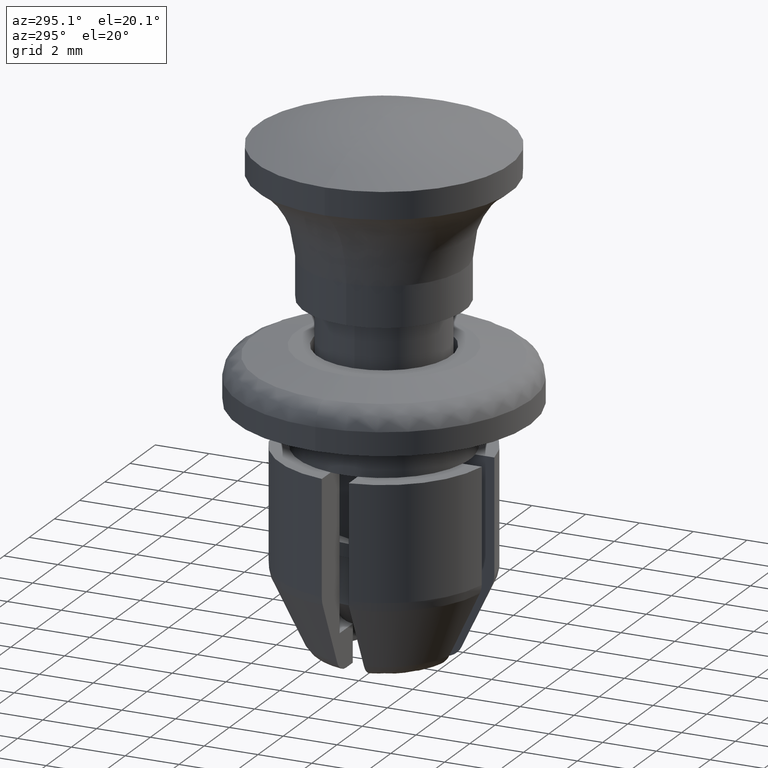
[diagram: clean part render]
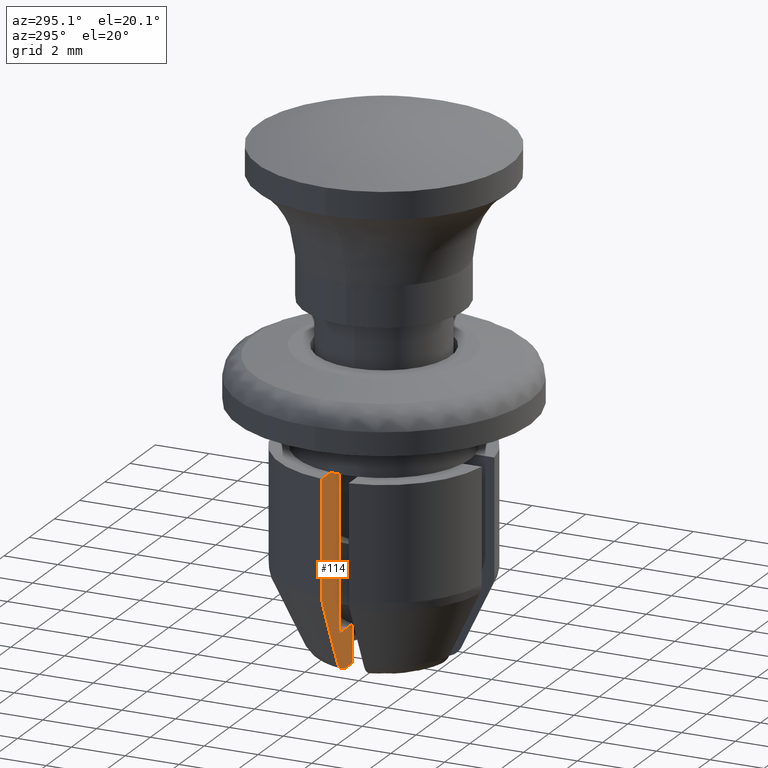
[diagram: same view with one face highlighted and labeled with its STEP entity id]
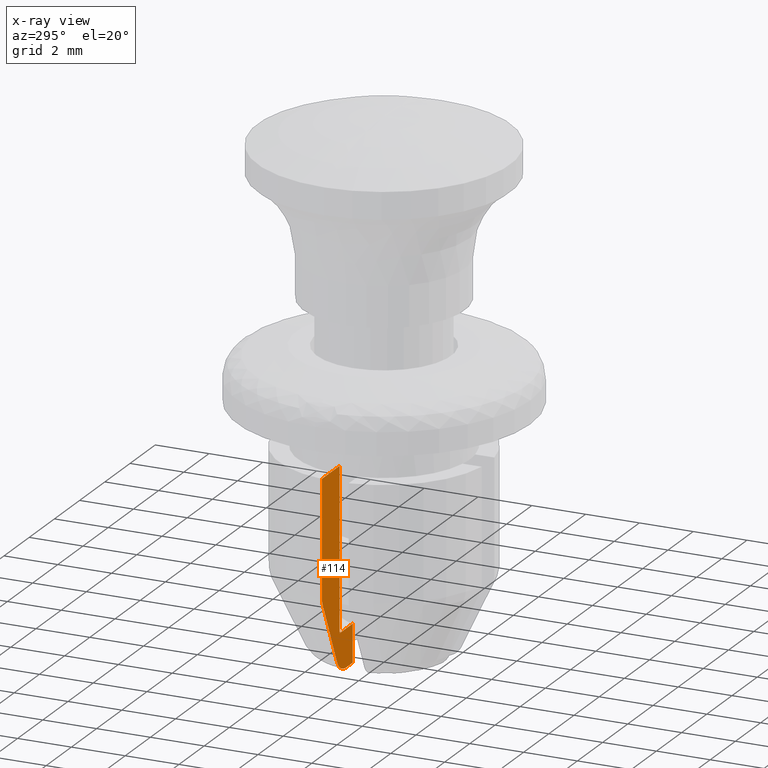
[diagram: x-ray of the same camera — body ghosted, the highlighted face saturated]
A machine part, auxiliary view. The second image highlights one B-rep face of the part: STEP entity #114.
The next image is the same camera in x-ray: the body ghosted, the highlighted face saturated — about 0% of this face is hidden behind the body in this view.
In plain terms, the highlighted planar face has unit normal (0, -1, 0).
Its self-contained STEP definition (entity closure, byte-faithful):
#114=ADVANCED_FACE('',(#213),#212,.T.);
#212=PLANE('',#1021);
#213=FACE_OUTER_BOUND('',#1022,.T.);
#1018=CARTESIAN_POINT('',(-4.11317615704E+00,5.00000000000E-01,-2.85996999998E+00));
#1019=DIRECTION('',(0.00000000000E+00,-1.00000000000E+00,0.00000000000E+00));
#1020=DIRECTION('',(0.00000000000E+00,0.00000000000E+00,-1.00000000000E+00));
#1021=AXIS2_PLACEMENT_3D('',#1018,#1019,#1020);
#1022=EDGE_LOOP('',(#1620,#1621,#1622,#1623,#1624,#1625,#1626,#1627,#1628,#1629));
#1620=ORIENTED_EDGE('',*,*,#2011,.F.);
#1621=ORIENTED_EDGE('',*,*,#2012,.F.);
#1622=ORIENTED_EDGE('',*,*,#2013,.F.);
#1623=ORIENTED_EDGE('',*,*,#2014,.F.);
#1624=ORIENTED_EDGE('',*,*,#2015,.F.);
#1625=ORIENTED_EDGE('',*,*,#2016,.F.);
#1626=ORIENTED_EDGE('',*,*,#2017,.F.);
#1627=ORIENTED_EDGE('',*,*,#2018,.T.);
#1628=ORIENTED_EDGE('',*,*,#2019,.T.);
#1629=ORIENTED_EDGE('',*,*,#2020,.T.);
#2011=EDGE_CURVE('',#2284,#2285,#2286,.T.);
#2012=EDGE_CURVE('',#2292,#2284,#2293,.T.);
#2013=EDGE_CURVE('',#2299,#2292,#2300,.T.);
#2014=EDGE_CURVE('',#2306,#2299,#2307,.T.);
#2015=EDGE_CURVE('',#2313,#2306,#2314,.T.);
#2016=EDGE_CURVE('',#2320,#2313,#2321,.T.);
#2017=EDGE_CURVE('',#2327,#2320,#2328,.T.);
#2018=EDGE_CURVE('',#2327,#2334,#2335,.T.);
#2019=EDGE_CURVE('',#2334,#2341,#2342,.T.);
#2020=EDGE_CURVE('',#2341,#2285,#2348,.T.);
#2284=VERTEX_POINT('',#3556);
#2285=VERTEX_POINT('',#3557);
#2286=LINE('',#3558,#3559);
#2292=VERTEX_POINT('',#3561);
#2293=LINE('',#3562,#3563);
#2299=VERTEX_POINT('',#3565);
#2300=LINE('',#3566,#3567);
#2306=VERTEX_POINT('',#3569);
#2307=LINE('',#3570,#3571);
#2313=VERTEX_POINT('',#3573);
#2314=(BOUNDED_CURVE() B_SPLINE_CURVE(3,(#3574,#3575,#3576,#3577,#3578,#3579),.UNSPECIFIED.,.F.,.F.) B_SPLINE_CURVE_WITH_KNOTS((4,2,4),(4.64821554045E-03,4.81718217281E-03,4.98614880518E-03),.UNSPECIFIED.) CURVE() GEOMETRIC_REPRESENTATION_ITEM() RATIONAL_B_SPLINE_CURVE((1.00000000000E+00,1.00000000000E+00,1.00000000000E+00,1.00000000000E+00,1.00000000000E+00,1.00000000000E+00)) REPRESENTATION_ITEM('') );
#2320=VERTEX_POINT('',#3580);
#2321=(BOUNDED_CURVE() B_SPLINE_CURVE(3,(#3581,#3582,#3583,#3584),.UNSPECIFIED.,.F.,.F.) B_SPLINE_CURVE_WITH_KNOTS((4,4),(3.31531142691E-03,5.97512270310E-03),.UNSPECIFIED.) CURVE() GEOMETRIC_REPRESENTATION_ITEM() RATIONAL_B_SPLINE_CURVE((1.00000000000E+00,1.00000000000E+00,1.00000000000E+00,1.00000000000E+00)) REPRESENTATION_ITEM('') );
#2327=VERTEX_POINT('',#3585);
#2328=(BOUNDED_CURVE() B_SPLINE_CURVE(3,(#3586,#3587,#3588,#3589,#3590,#3591),.UNSPECIFIED.,.F.,.F.) B_SPLINE_CURVE_WITH_KNOTS((4,2,4),(4.15441141789E-03,4.58452043412E-03,5.01464759113E-03),.UNSPECIFIED.) CURVE() GEOMETRIC_REPRESENTATION_ITEM() RATIONAL_B_SPLINE_CURVE((1.00000000000E+00,1.00000000000E+00,1.00000000000E+00,1.00000000000E+00,1.00000000000E+00,1.00000000000E+00)) REPRESENTATION_ITEM('') );
#2334=VERTEX_POINT('',#3592);
#2335=LINE('',#3593,#3594);
#2341=VERTEX_POINT('',#3596);
#2342=LINE('',#3597,#3598);
#2348=LINE('',#3600,#3601);
#3556=CARTESIAN_POINT('',(-2.44948974278E+00,5.00000000000E-01,-3.60000000000E+00));
#3557=CARTESIAN_POINT('',(-2.44948974278E+00,5.00000000000E-01,-9.60030000000E+00));
#3558=CARTESIAN_POINT('',(-2.44948974278E+00,5.00000000000E-01,-3.60000000000E+00));
#3559=VECTOR('',#3560,6.00030000000E+00);
#3560=DIRECTION('',(0.00000000000E+00,0.00000000000E+00,-1.00000000000E+00));
#3561=CARTESIAN_POINT('',(-3.16069612586E+00,5.00000000000E-01,-3.60000000000E+00));
#3562=CARTESIAN_POINT('',(-3.16069612586E+00,5.00000000000E-01,-3.60000000000E+00));
#3563=VECTOR('',#3564,7.11206383073E-01);
#3564=DIRECTION('',(1.00000000000E+00,0.00000000000E+00,0.00000000000E+00));
#3565=CARTESIAN_POINT('',(-3.86781592116E+00,5.00000000000E-01,-3.60000000000E+00));
#3566=CARTESIAN_POINT('',(-3.86781592116E+00,5.00000000000E-01,-3.60000000000E+00));
#3567=VECTOR('',#3568,7.07119795307E-01);
#3568=DIRECTION('',(1.00000000000E+00,0.00000000000E+00,0.00000000000E+00));
#3569=CARTESIAN_POINT('',(-3.86781592116E+00,5.00000000000E-01,-7.83400000000E+00));
#3570=CARTESIAN_POINT('',(-3.86781592116E+00,5.00000000000E-01,-7.83400000000E+00));
#3571=VECTOR('',#3572,4.23400000000E+00);
#3572=DIRECTION('',(0.00000000000E+00,0.00000000000E+00,1.00000000000E+00));
#3573=CARTESIAN_POINT('',(-3.79146062763E+00,5.00000000000E-01,-8.16238480092E+00));
#3574=CARTESIAN_POINT('',(-3.79146062763E+00,5.00000000000E-01,-8.16238480092E+00));
#3575=CARTESIAN_POINT('',(-3.81650764745E+00,5.00000000000E-01,-8.11139608744E+00));
#3576=CARTESIAN_POINT('',(-3.83578287035E+00,5.00000000000E-01,-8.05719391402E+00));
#3577=CARTESIAN_POINT('',(-3.86127975215E+00,5.00000000000E-01,-7.94738455117E+00));
#3578=CARTESIAN_POINT('',(-3.86781592116E+00,5.00000000000E-01,-7.89094788037E+00));
#3579=CARTESIAN_POINT('',(-3.86781592116E+00,5.00000000000E-01,-7.83400000000E+00));
#3580=CARTESIAN_POINT('',(-2.65533500711E+00,5.00000000000E-01,-1.05674000000E+01));
#3581=CARTESIAN_POINT('',(-2.65533500711E+00,5.00000000000E-01,-1.05674000000E+01));
#3582=CARTESIAN_POINT('',(-3.03564446289E+00,5.00000000000E-01,-9.76648789093E+00));
#3583=CARTESIAN_POINT('',(-3.41387625680E+00,5.00000000000E-01,-8.96458691741E+00));
#3584=CARTESIAN_POINT('',(-3.79146062763E+00,5.00000000000E-01,-8.16238480092E+00));
#3585=CARTESIAN_POINT('',(-1.95950752863E+00,5.00004366201E-01,-1.10003000000E+01));
#3586=CARTESIAN_POINT('',(-1.95950752863E+00,5.00000000000E-01,-1.10003000002E+01));
#3587=CARTESIAN_POINT('',(-2.10306461000E+00,5.00000000000E-01,-1.10002966764E+01));
#3588=CARTESIAN_POINT('',(-2.24645496874E+00,5.00000000000E-01,-1.09608906252E+01));
#3589=CARTESIAN_POINT('',(-2.49280838102E+00,5.00000000000E-01,-1.08091887810E+01));
#3590=CARTESIAN_POINT('',(-2.59311273103E+00,5.00000000000E-01,-1.06984369059E+01));
#3591=CARTESIAN_POINT('',(-2.65533500711E+00,5.00000000000E-01,-1.05674000000E+01));
#3592=CARTESIAN_POINT('',(-1.41421356237E+00,5.00000000000E-01,-1.10003000000E+01));
#3593=CARTESIAN_POINT('',(-1.95950752863E+00,5.00000000000E-01,-1.10003000000E+01));
#3594=VECTOR('',#3595,5.45293966253E-01);
#3595=DIRECTION('',(1.00000000000E+00,0.00000000000E+00,0.00000000000E+00));
#3596=CARTESIAN_POINT('',(-1.41421356237E+00,5.00000000000E-01,-9.60030000000E+00));
#3597=CARTESIAN_POINT('',(-1.41421356237E+00,5.00000000000E-01,-1.10003000000E+01));
#3598=VECTOR('',#3599,1.40000000000E+00);
#3599=DIRECTION('',(0.00000000000E+00,0.00000000000E+00,1.00000000000E+00));
#3600=CARTESIAN_POINT('',(-1.41421356237E+00,5.00000000000E-01,-9.60030000000E+00));
#3601=VECTOR('',#3602,1.03527618041E+00);
#3602=DIRECTION('',(-1.00000000000E+00,0.00000000000E+00,0.00000000000E+00));